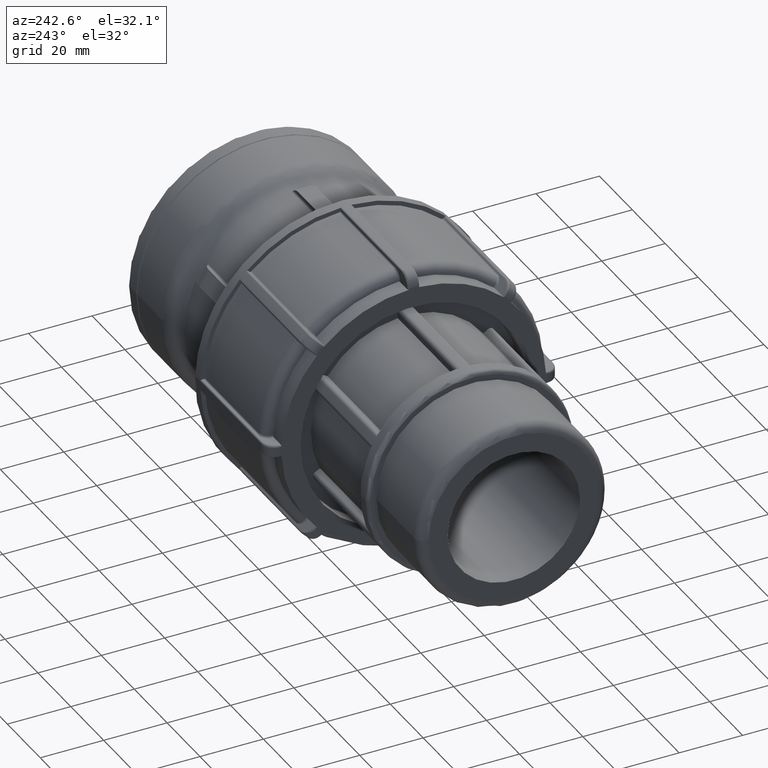
[diagram: clean part render]
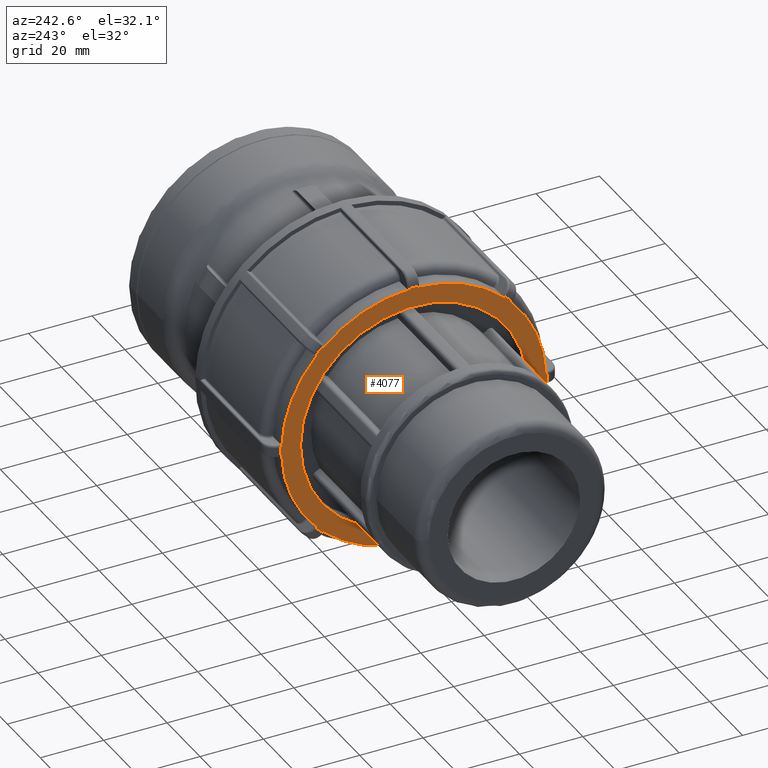
[diagram: same view with one face highlighted and labeled with its STEP entity id]
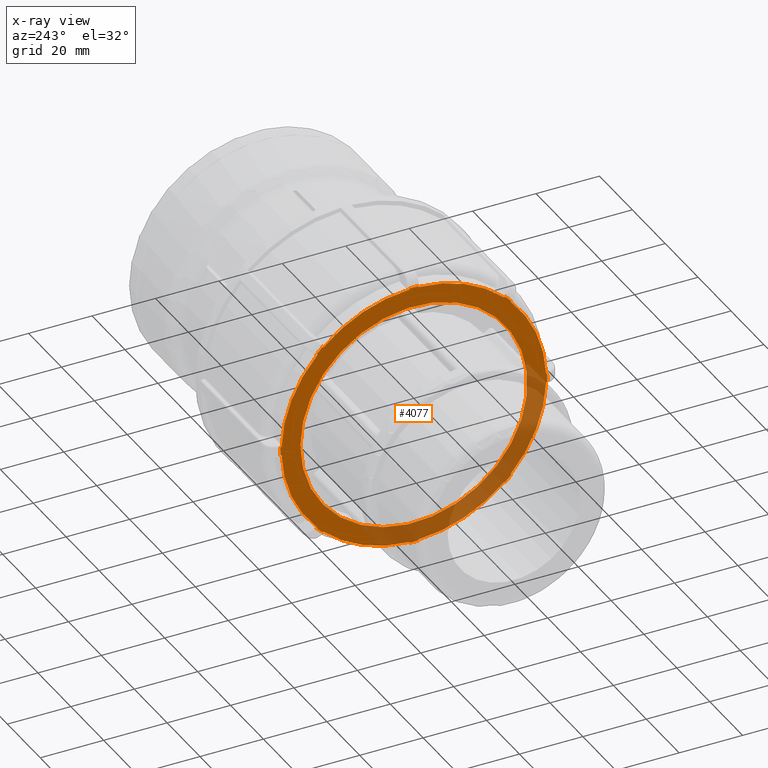
[diagram: x-ray of the same camera — body ghosted, the highlighted face saturated]
A machine part, auxiliary view. The second image highlights one B-rep face of the part: STEP entity #4077.
The next image is the same camera in x-ray: the body ghosted, the highlighted face saturated — about 32% of this face is hidden behind the body in this view.
In plain terms, the highlighted planar face has unit normal (-1, 0, 0).
Its self-contained STEP definition (entity closure, byte-faithful):
#66=FACE_BOUND('',#1094,.T.);
#109=PLANE('',#4417);
#253=LINE('',#6742,#500);
#271=LINE('',#6863,#518);
#272=LINE('',#6867,#519);
#273=LINE('',#6871,#520);
#274=LINE('',#6875,#521);
#275=LINE('',#6879,#522);
#276=LINE('',#6883,#523);
#277=LINE('',#6887,#524);
#278=LINE('',#6891,#525);
#279=LINE('',#6895,#526);
#280=LINE('',#6899,#527);
#281=LINE('',#6903,#528);
#282=LINE('',#6907,#529);
#283=LINE('',#6911,#530);
#284=LINE('',#6915,#531);
#285=LINE('',#6918,#532);
#500=VECTOR('',#5098,0.320374275068138);
#518=VECTOR('',#5166,0.320374275068147);
#519=VECTOR('',#5169,0.320374275068147);
#520=VECTOR('',#5172,0.320374275068134);
#521=VECTOR('',#5175,0.320374275068134);
#522=VECTOR('',#5178,0.320374275068147);
#523=VECTOR('',#5181,0.320374275068147);
#524=VECTOR('',#5184,0.320374275068134);
#525=VECTOR('',#5187,0.320374275068138);
#526=VECTOR('',#5190,0.320374275068147);
#527=VECTOR('',#5193,0.320374275068147);
#528=VECTOR('',#5196,0.320374275068152);
#529=VECTOR('',#5199,0.32037427506815);
#530=VECTOR('',#5202,0.320374275068147);
#531=VECTOR('',#5205,0.320374275068147);
#532=VECTOR('',#5208,0.320374275068139);
#834=FACE_OUTER_BOUND('',#1093,.T.);
#1093=EDGE_LOOP('',(#3165,#3166,#3167,#3168,#3169,#3170,#3171,#3172,#3173,
#3174,#3175,#3176,#3177,#3178,#3179,#3180,#3181,#3182,#3183,#3184,#3185,
#3186,#3187,#3188,#3189,#3190,#3191,#3192,#3193,#3194,#3195,#3196));
#1094=EDGE_LOOP('',(#3197));
#1515=CIRCLE('',#4416,42.05);
#1516=CIRCLE('',#4418,41.7298);
#1517=CIRCLE('',#4419,42.05);
#1518=CIRCLE('',#4420,41.7298);
#1519=CIRCLE('',#4421,42.05);
#1520=CIRCLE('',#4422,41.7298);
#1521=CIRCLE('',#4423,42.05);
#1522=CIRCLE('',#4424,41.7298);
#1523=CIRCLE('',#4425,42.05);
#1524=CIRCLE('',#4426,41.7298);
#1525=CIRCLE('',#4427,42.05);
#1526=CIRCLE('',#4428,41.7298);
#1527=CIRCLE('',#4429,42.05);
#1528=CIRCLE('',#4430,41.7298);
#1529=CIRCLE('',#4431,42.05);
#1530=CIRCLE('',#4432,41.7298);
#1531=CIRCLE('',#4433,35.7684);
#1826=VERTEX_POINT('',#6726);
#1829=VERTEX_POINT('',#6731);
#1865=VERTEX_POINT('',#6852);
#1866=VERTEX_POINT('',#6860);
#1867=VERTEX_POINT('',#6862);
#1868=VERTEX_POINT('',#6864);
#1869=VERTEX_POINT('',#6866);
#1870=VERTEX_POINT('',#6868);
#1871=VERTEX_POINT('',#6870);
#1872=VERTEX_POINT('',#6872);
#1873=VERTEX_POINT('',#6874);
#1874=VERTEX_POINT('',#6876);
#1875=VERTEX_POINT('',#6878);
#1876=VERTEX_POINT('',#6880);
#1877=VERTEX_POINT('',#6882);
#1878=VERTEX_POINT('',#6884);
#1879=VERTEX_POINT('',#6886);
#1880=VERTEX_POINT('',#6888);
#1881=VERTEX_POINT('',#6890);
#1882=VERTEX_POINT('',#6892);
#1883=VERTEX_POINT('',#6894);
#1884=VERTEX_POINT('',#6896);
#1885=VERTEX_POINT('',#6898);
#1886=VERTEX_POINT('',#6900);
#1887=VERTEX_POINT('',#6902);
#1888=VERTEX_POINT('',#6904);
#1889=VERTEX_POINT('',#6906);
#1890=VERTEX_POINT('',#6908);
#1891=VERTEX_POINT('',#6910);
#1892=VERTEX_POINT('',#6912);
#1893=VERTEX_POINT('',#6914);
#1894=VERTEX_POINT('',#6916);
#1895=VERTEX_POINT('',#6919);
#2309=EDGE_CURVE('',#1829,#1826,#253,.T.);
#2348=EDGE_CURVE('',#1826,#1865,#1515,.T.);
#2350=EDGE_CURVE('',#1866,#1829,#1516,.T.);
#2351=EDGE_CURVE('',#1867,#1866,#271,.T.);
#2352=EDGE_CURVE('',#1868,#1867,#1517,.T.);
#2353=EDGE_CURVE('',#1869,#1868,#272,.T.);
#2354=EDGE_CURVE('',#1870,#1869,#1518,.T.);
#2355=EDGE_CURVE('',#1871,#1870,#273,.T.);
#2356=EDGE_CURVE('',#1872,#1871,#1519,.T.);
#2357=EDGE_CURVE('',#1873,#1872,#274,.T.);
#2358=EDGE_CURVE('',#1874,#1873,#1520,.T.);
#2359=EDGE_CURVE('',#1875,#1874,#275,.T.);
#2360=EDGE_CURVE('',#1876,#1875,#1521,.T.);
#2361=EDGE_CURVE('',#1877,#1876,#276,.T.);
#2362=EDGE_CURVE('',#1878,#1877,#1522,.T.);
#2363=EDGE_CURVE('',#1879,#1878,#277,.T.);
#2364=EDGE_CURVE('',#1880,#1879,#1523,.T.);
#2365=EDGE_CURVE('',#1881,#1880,#278,.T.);
#2366=EDGE_CURVE('',#1882,#1881,#1524,.T.);
#2367=EDGE_CURVE('',#1883,#1882,#279,.T.);
#2368=EDGE_CURVE('',#1884,#1883,#1525,.T.);
#2369=EDGE_CURVE('',#1885,#1884,#280,.T.);
#2370=EDGE_CURVE('',#1886,#1885,#1526,.T.);
#2371=EDGE_CURVE('',#1887,#1886,#281,.T.);
#2372=EDGE_CURVE('',#1888,#1887,#1527,.T.);
#2373=EDGE_CURVE('',#1889,#1888,#282,.T.);
#2374=EDGE_CURVE('',#1890,#1889,#1528,.T.);
#2375=EDGE_CURVE('',#1891,#1890,#283,.T.);
#2376=EDGE_CURVE('',#1892,#1891,#1529,.T.);
#2377=EDGE_CURVE('',#1893,#1892,#284,.T.);
#2378=EDGE_CURVE('',#1894,#1893,#1530,.T.);
#2379=EDGE_CURVE('',#1865,#1894,#285,.T.);
#2380=EDGE_CURVE('',#1895,#1895,#1531,.T.);
#3165=ORIENTED_EDGE('',*,*,#2309,.F.);
#3166=ORIENTED_EDGE('',*,*,#2350,.F.);
#3167=ORIENTED_EDGE('',*,*,#2351,.F.);
#3168=ORIENTED_EDGE('',*,*,#2352,.F.);
#3169=ORIENTED_EDGE('',*,*,#2353,.F.);
#3170=ORIENTED_EDGE('',*,*,#2354,.F.);
#3171=ORIENTED_EDGE('',*,*,#2355,.F.);
#3172=ORIENTED_EDGE('',*,*,#2356,.F.);
#3173=ORIENTED_EDGE('',*,*,#2357,.F.);
#3174=ORIENTED_EDGE('',*,*,#2358,.F.);
#3175=ORIENTED_EDGE('',*,*,#2359,.F.);
#3176=ORIENTED_EDGE('',*,*,#2360,.F.);
#3177=ORIENTED_EDGE('',*,*,#2361,.F.);
#3178=ORIENTED_EDGE('',*,*,#2362,.F.);
#3179=ORIENTED_EDGE('',*,*,#2363,.F.);
#3180=ORIENTED_EDGE('',*,*,#2364,.F.);
#3181=ORIENTED_EDGE('',*,*,#2365,.F.);
#3182=ORIENTED_EDGE('',*,*,#2366,.F.);
#3183=ORIENTED_EDGE('',*,*,#2367,.F.);
#3184=ORIENTED_EDGE('',*,*,#2368,.F.);
#3185=ORIENTED_EDGE('',*,*,#2369,.F.);
#3186=ORIENTED_EDGE('',*,*,#2370,.F.);
#3187=ORIENTED_EDGE('',*,*,#2371,.F.);
#3188=ORIENTED_EDGE('',*,*,#2372,.F.);
#3189=ORIENTED_EDGE('',*,*,#2373,.F.);
#3190=ORIENTED_EDGE('',*,*,#2374,.F.);
#3191=ORIENTED_EDGE('',*,*,#2375,.F.);
#3192=ORIENTED_EDGE('',*,*,#2376,.F.);
#3193=ORIENTED_EDGE('',*,*,#2377,.F.);
#3194=ORIENTED_EDGE('',*,*,#2378,.F.);
#3195=ORIENTED_EDGE('',*,*,#2379,.F.);
#3196=ORIENTED_EDGE('',*,*,#2348,.F.);
#3197=ORIENTED_EDGE('',*,*,#2380,.T.);
#4077=ADVANCED_FACE('',(#834,#66),#109,.T.);
#4416=AXIS2_PLACEMENT_3D('',#6853,#5160,#5161);
#4417=AXIS2_PLACEMENT_3D('',#6859,#5162,#5163);
#4418=AXIS2_PLACEMENT_3D('',#6861,#5164,#5165);
#4419=AXIS2_PLACEMENT_3D('',#6865,#5167,#5168);
#4420=AXIS2_PLACEMENT_3D('',#6869,#5170,#5171);
#4421=AXIS2_PLACEMENT_3D('',#6873,#5173,#5174);
#4422=AXIS2_PLACEMENT_3D('',#6877,#5176,#5177);
#4423=AXIS2_PLACEMENT_3D('',#6881,#5179,#5180);
#4424=AXIS2_PLACEMENT_3D('',#6885,#5182,#5183);
#4425=AXIS2_PLACEMENT_3D('',#6889,#5185,#5186);
#4426=AXIS2_PLACEMENT_3D('',#6893,#5188,#5189);
#4427=AXIS2_PLACEMENT_3D('',#6897,#5191,#5192);
#4428=AXIS2_PLACEMENT_3D('',#6901,#5194,#5195);
#4429=AXIS2_PLACEMENT_3D('',#6905,#5197,#5198);
#4430=AXIS2_PLACEMENT_3D('',#6909,#5200,#5201);
#4431=AXIS2_PLACEMENT_3D('',#6913,#5203,#5204);
#4432=AXIS2_PLACEMENT_3D('',#6917,#5206,#5207);
#4433=AXIS2_PLACEMENT_3D('',#6920,#5209,#5210);
#5098=DIRECTION('',(0.,0.707106781186547,-0.707106781186548));
#5160=DIRECTION('center_axis',(1.,0.,0.));
#5161=DIRECTION('ref_axis',(0.,0.707106781186547,-0.707106781186548));
#5162=DIRECTION('center_axis',(-1.,0.,0.));
#5163=DIRECTION('ref_axis',(0.,0.,1.));
#5164=DIRECTION('center_axis',(1.,0.,0.));
#5165=DIRECTION('ref_axis',(0.,0.,-1.));
#5166=DIRECTION('',(0.,9.43689570931383E-16,1.));
#5167=DIRECTION('center_axis',(1.,0.,0.));
#5168=DIRECTION('ref_axis',(0.,-5.82158883772977E-16,-1.));
#5169=DIRECTION('',(0.,-2.77555756156289E-16,-1.));
#5170=DIRECTION('center_axis',(1.,0.,0.));
#5171=DIRECTION('ref_axis',(0.,0.,-1.));
#5172=DIRECTION('',(0.,0.707106781186548,0.707106781186547));
#5173=DIRECTION('center_axis',(1.,0.,0.));
#5174=DIRECTION('ref_axis',(0.,-0.707106781186548,-0.707106781186547));
#5175=DIRECTION('',(0.,-0.707106781186548,-0.707106781186547));
#5176=DIRECTION('center_axis',(1.,0.,0.));
#5177=DIRECTION('ref_axis',(0.,0.,-1.));
#5178=DIRECTION('',(0.,1.,-7.21644966006352E-16));
#5179=DIRECTION('center_axis',(1.,0.,0.));
#5180=DIRECTION('ref_axis',(0.,-1.,4.85722573273506E-16));
#5181=DIRECTION('',(0.,-1.,2.22044604925031E-16));
#5182=DIRECTION('center_axis',(1.,0.,0.));
#5183=DIRECTION('ref_axis',(0.,0.,-1.));
#5184=DIRECTION('',(0.,0.707106781186547,-0.707106781186548));
#5185=DIRECTION('center_axis',(1.,0.,0.));
#5186=DIRECTION('ref_axis',(0.,-0.707106781186547,0.707106781186548));
#5187=DIRECTION('',(0.,-0.707106781186547,0.707106781186548));
#5188=DIRECTION('center_axis',(1.,0.,0.));
#5189=DIRECTION('ref_axis',(0.,0.,-1.));
#5190=DIRECTION('',(0.,-8.39867486114189E-16,-1.));
#5191=DIRECTION('center_axis',(1.,0.,0.));
#5192=DIRECTION('ref_axis',(0.,4.85722573273506E-16,1.));
#5193=DIRECTION('',(0.,1.35462497760353E-16,1.));
#5194=DIRECTION('center_axis',(1.,0.,0.));
#5195=DIRECTION('ref_axis',(0.,0.,-1.));
#5196=DIRECTION('',(0.,-0.707106781186548,-0.707106781186547));
#5197=DIRECTION('center_axis',(1.,0.,0.));
#5198=DIRECTION('ref_axis',(0.,0.707106781186548,0.707106781186547));
#5199=DIRECTION('',(0.,0.707106781186548,0.707106781186547));
#5200=DIRECTION('center_axis',(1.,0.,0.));
#5201=DIRECTION('ref_axis',(0.,0.,-1.));
#5202=DIRECTION('',(0.,-1.,9.43689570931383E-16));
#5203=DIRECTION('center_axis',(1.,0.,0.));
#5204=DIRECTION('ref_axis',(0.,1.,-5.82158883772977E-16));
#5205=DIRECTION('',(0.,1.,-2.77555756156289E-16));
#5206=DIRECTION('center_axis',(1.,0.,0.));
#5207=DIRECTION('ref_axis',(0.,0.,-1.));
#5208=DIRECTION('',(0.,-0.707106781186547,0.707106781186548));
#5209=DIRECTION('center_axis',(1.,0.,0.));
#5210=DIRECTION('ref_axis',(0.,0.,-1.));
#6726=CARTESIAN_POINT('',(-97.17,28.7409209115715,-30.69465694799));
#6731=CARTESIAN_POINT('',(-97.17,28.5143820891531,-30.4681181255716));
#6742=CARTESIAN_POINT('',(-97.17,22.1016210778872,-24.0553571143057));
#6852=CARTESIAN_POINT('',(-97.17,30.6946569479899,-28.7409209115716));
#6853=CARTESIAN_POINT('Origin',(-97.17,0.,0.));
#6859=CARTESIAN_POINT('Origin',(-97.17,41.7298,0.));
#6860=CARTESIAN_POINT('',(-97.17,1.38149999999997,-41.7069258731688));
#6861=CARTESIAN_POINT('Origin',(-97.17,0.,0.));
#6862=CARTESIAN_POINT('',(-97.17,1.38149999999997,-42.027300148237));
#6863=CARTESIAN_POINT('',(-97.17,1.38149999999999,-23.0065726260997));
#6864=CARTESIAN_POINT('',(-97.17,-1.38150000000002,-42.027300148237));
#6865=CARTESIAN_POINT('Origin',(-97.17,0.,0.));
#6866=CARTESIAN_POINT('',(-97.17,-1.38150000000002,-41.7069258731688));
#6867=CARTESIAN_POINT('',(-97.17,-1.38150000000001,-17.8842));
#6868=CARTESIAN_POINT('',(-97.17,-28.5143820891531,-30.4681181255715));
#6869=CARTESIAN_POINT('Origin',(-97.17,0.,0.));
#6870=CARTESIAN_POINT('',(-97.17,-28.7409209115716,-30.6946569479899));
#6871=CARTESIAN_POINT('',(-97.17,-4.85878549756667,-6.8125215339851));
#6872=CARTESIAN_POINT('',(-97.17,-30.69465694799,-28.7409209115715));
#6873=CARTESIAN_POINT('Origin',(-97.17,0.,0.));
#6874=CARTESIAN_POINT('',(-97.17,-30.4681181255716,-28.5143820891531));
#6875=CARTESIAN_POINT('',(-97.17,-3.19045711430568,-1.23672107788724));
#6876=CARTESIAN_POINT('',(-97.17,-41.7069258731688,-1.38149999999997));
#6877=CARTESIAN_POINT('Origin',(-97.17,0.,0.));
#6878=CARTESIAN_POINT('',(-97.17,-42.027300148237,-1.38149999999997));
#6879=CARTESIAN_POINT('',(-97.17,-2.1416726260997,-1.3815));
#6880=CARTESIAN_POINT('',(-97.17,-42.027300148237,1.38150000000001));
#6881=CARTESIAN_POINT('Origin',(-97.17,0.,0.));
#6882=CARTESIAN_POINT('',(-97.17,-41.7069258731688,1.38150000000001));
#6883=CARTESIAN_POINT('',(-97.17,2.98069999999999,1.3815));
#6884=CARTESIAN_POINT('',(-97.17,-30.4681181255715,28.5143820891532));
#6885=CARTESIAN_POINT('Origin',(-97.17,0.,0.));
#6886=CARTESIAN_POINT('',(-97.17,-30.6946569479899,28.7409209115716));
#6887=CARTESIAN_POINT('',(-97.17,-6.81252153398511,4.85878549756669));
#6888=CARTESIAN_POINT('',(-97.17,-28.7409209115715,30.69465694799));
#6889=CARTESIAN_POINT('Origin',(-97.17,0.,0.));
#6890=CARTESIAN_POINT('',(-97.17,-28.5143820891531,30.4681181255716));
#6891=CARTESIAN_POINT('',(-97.17,-1.23672107788724,3.19045711430569));
#6892=CARTESIAN_POINT('',(-97.17,-1.38149999999997,41.7069258731688));
#6893=CARTESIAN_POINT('Origin',(-97.17,0.,0.));
#6894=CARTESIAN_POINT('',(-97.17,-1.38149999999997,42.027300148237));
#6895=CARTESIAN_POINT('',(-97.17,-1.38149999999999,23.0065726260997));
#6896=CARTESIAN_POINT('',(-97.17,1.38150000000001,42.027300148237));
#6897=CARTESIAN_POINT('Origin',(-97.17,0.,0.));
#6898=CARTESIAN_POINT('',(-97.17,1.38150000000001,41.7069258731688));
#6899=CARTESIAN_POINT('',(-97.17,1.38150000000001,17.8842));
#6900=CARTESIAN_POINT('',(-97.17,28.5143820891532,30.4681181255715));
#6901=CARTESIAN_POINT('Origin',(-97.17,0.,0.));
#6902=CARTESIAN_POINT('',(-97.17,28.7409209115716,30.6946569479899));
#6903=CARTESIAN_POINT('',(-97.17,25.7236854975667,27.6774215339851));
#6904=CARTESIAN_POINT('',(-97.17,30.69465694799,28.7409209115715));
#6905=CARTESIAN_POINT('Origin',(-97.17,0.,0.));
#6906=CARTESIAN_POINT('',(-97.17,30.4681181255716,28.5143820891531));
#6907=CARTESIAN_POINT('',(-97.17,24.0553571143057,22.1016210778872));
#6908=CARTESIAN_POINT('',(-97.17,41.7069258731688,1.38149999999997));
#6909=CARTESIAN_POINT('Origin',(-97.17,0.,0.));
#6910=CARTESIAN_POINT('',(-97.17,42.027300148237,1.38149999999997));
#6911=CARTESIAN_POINT('',(-97.17,43.8714726260997,1.38149999999997));
#6912=CARTESIAN_POINT('',(-97.17,42.027300148237,-1.38150000000002));
#6913=CARTESIAN_POINT('Origin',(-97.17,0.,0.));
#6914=CARTESIAN_POINT('',(-97.17,41.7069258731688,-1.38150000000002));
#6915=CARTESIAN_POINT('',(-97.17,38.7491,-1.38150000000002));
#6916=CARTESIAN_POINT('',(-97.17,30.4681181255715,-28.5143820891532));
#6917=CARTESIAN_POINT('Origin',(-97.17,0.,0.));
#6918=CARTESIAN_POINT('',(-97.17,27.6774215339851,-25.7236854975667));
#6919=CARTESIAN_POINT('',(-97.17,35.7684,0.));
#6920=CARTESIAN_POINT('Origin',(-97.17,0.,0.));